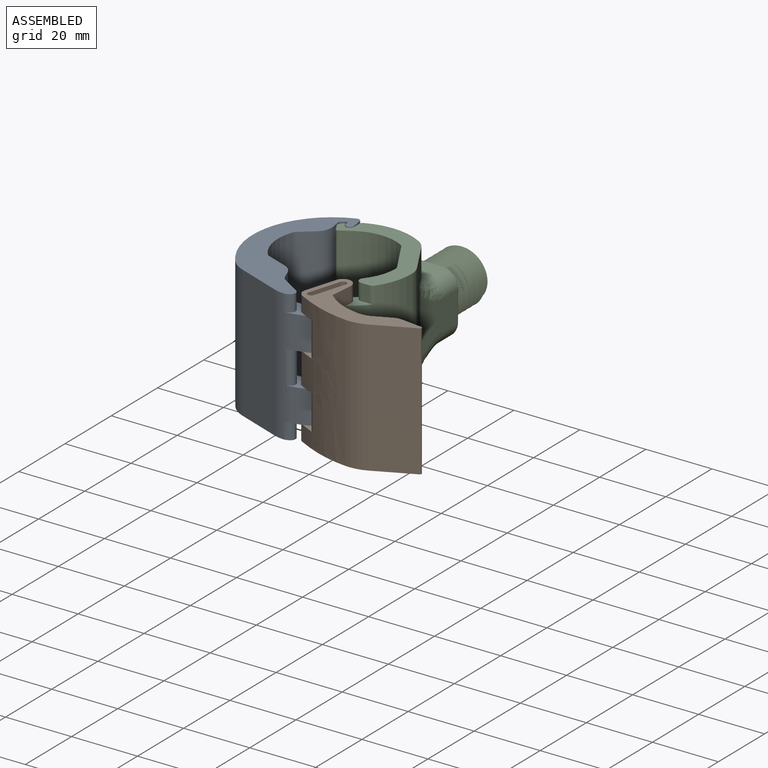
[diagram: assembled view]
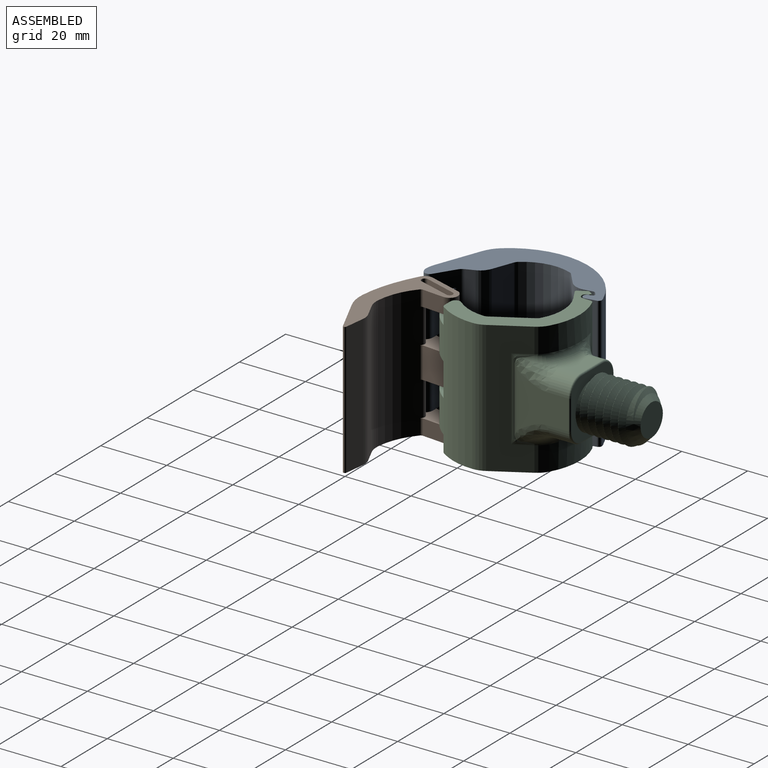
[diagram: assembled view, second angle]
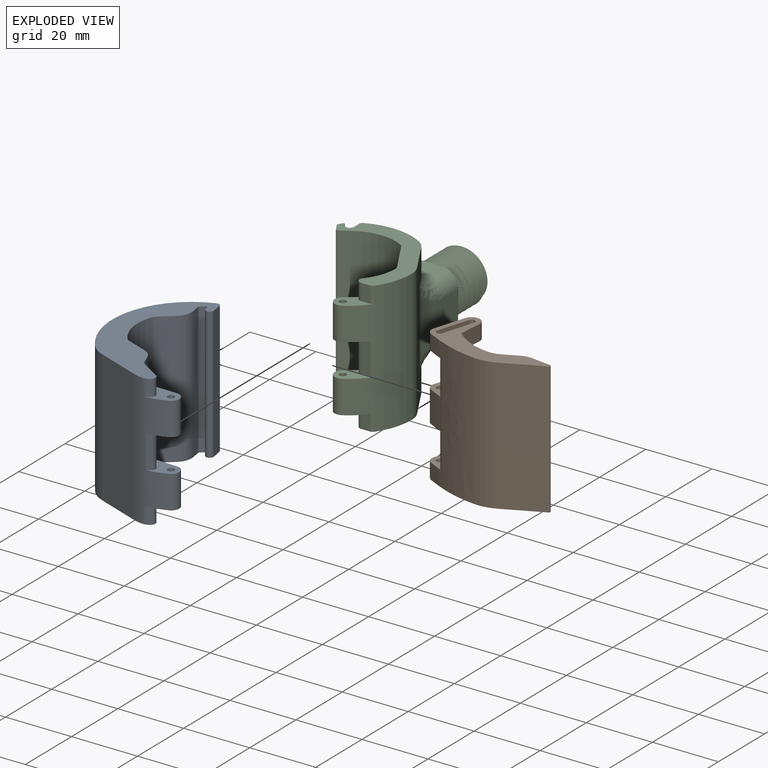
[diagram: exploded view]
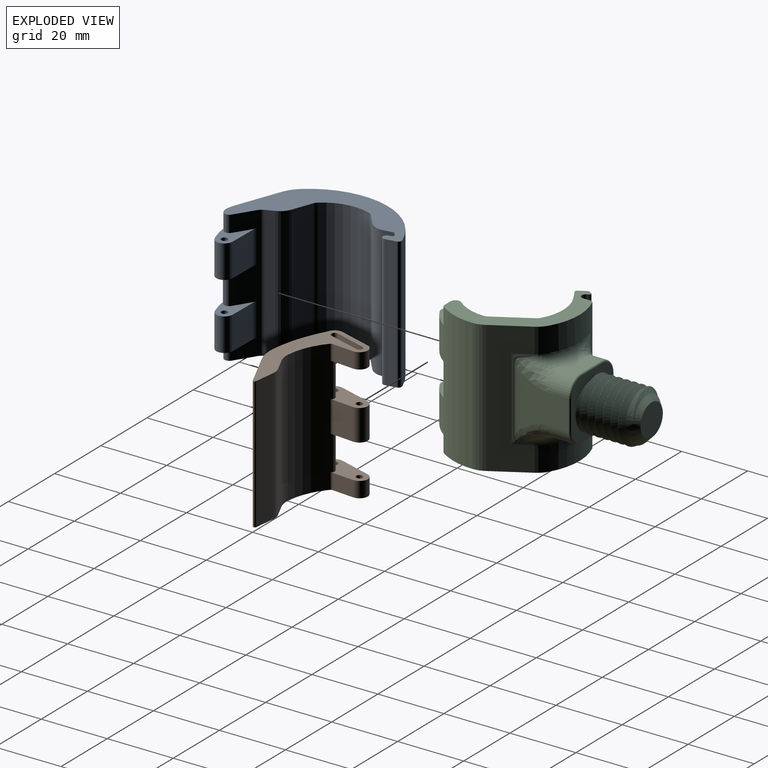
[diagram: exploded view, second angle]
ASSEMBLY  parts=3 mates=2
PART A: 46 faces, bbox 40.9x40.7x40 mm
  f0: plane 10x8mm, normal (-0.34,0.94,0), area 85mm2, adj f2,f4,f31,f33
  f1: plane 10x8mm, normal (-0.34,0.94,0), area 85mm2, adj f2,f14,f32,f35
  f2: cylinder r=2.76mm len=40mm, axis (0,0,1), area 100mm2, adj f0,f1,f5,f6,f15,f31,f32,f33
  f3: cylinder r=24.03mm len=10mm, axis (0,0,1), area 48.6mm2, adj f14,f30,f32,f35
  f4: cylinder r=2.5mm len=10mm, axis (0,0,1), area 68.8mm2, adj f0,f13,f31,f33
  f5: plane 40.65x35.95mm, normal (0,0,-1), area 424.6mm2, adj f2,f7,f8,f9,f10,f11,f12,f15
  f6: plane 40.65x35.95mm, normal (0,0,1), area 424.6mm2, adj f2,f7,f8,f9,f10,f11,f12,f15
  f7: plane 40x0.67mm, normal (-0.87,-0.5,0), area 31.2mm2, adj f5,f6,f8,f25
  f8: cylinder r=1.15mm len=40mm, axis (0,0,1), area 144.5mm2, adj f5,f6,f7,f9
  f9: plane 40x2.8mm, normal (0.87,0.5,0), area 129.1mm2, adj f5,f6,f8,f28
  f10: cylinder r=9.4mm len=40mm, axis (0,0,1), area 23.3mm2, adj f5,f6,f11,f28
  f11: cylinder r=24.03mm len=40mm, axis (0,0,1), area 1814.5mm2, adj f5,f6,f10,f29
  f12: plane 40x14.09mm, normal (0,-1,0), area 563.6mm2, adj f5,f6,f29,f30
  f13: cylinder r=24.03mm len=10mm, axis (0,0,1), area 48.6mm2, adj f4,f30,f31,f33
  f14: cylinder r=2.5mm len=10mm, axis (0,0,1), area 68.8mm2, adj f1,f3,f32,f35
  f15: plane 40x2.09mm, normal (0.74,0.67,0), area 112.7mm2, adj f2,f5,f6,f26
  f16: plane 40x6.72mm, normal (0,1,0), area 268.8mm2, adj f5,f6,f17,f26
  f17: cylinder r=2.1mm len=40mm, axis (0,0,1), area 44mm2, adj f5,f6,f16,f18
  f18: cylinder r=14.16mm len=40mm, axis (0,0,1), area 592.6mm2, adj f5,f6,f17,f19
  f19: cylinder r=2.1mm len=40mm, axis (0,0,1), area 44mm2, adj f5,f6,f18,f20
  f20: plane 40x4.4mm, normal (0.87,-0.5,0), area 203.3mm2, adj f5,f6,f19,f27
  f21: plane 40x2.3mm, normal (0.87,0.5,0), area 106.2mm2, adj f5,f6,f22,f27
  f22: cylinder r=0.6mm len=40mm, axis (0,0,1), area 25.1mm2, adj f5,f6,f21,f23
  f23: plane 40x0.7mm, normal (0.87,-0.5,0), area 32.3mm2, adj f5,f6,f22,f24
  f24: cylinder r=7.2mm len=40mm, axis (0,0,1), area 14.9mm2, adj f5,f6,f23,f25
  f25: cylinder r=0.6mm len=40mm, axis (0,0,1), area 49mm2, adj f5,f6,f7,f24
  f26: cylinder r=5mm len=40mm, axis (0,0,1), area 167.1mm2, adj f5,f6,f15,f16
  f27: cylinder r=5mm len=40mm, axis (0,0,1), area 209.4mm2, adj f5,f6,f20,f21
  f28: cylinder r=1mm len=40mm, axis (0,0,1), area 68.1mm2, adj f5,f6,f9,f10
  f29: cylinder r=10mm len=40mm, axis (0,0,1), area 210.4mm2, adj f5,f6,f11,f12
  f30: cylinder r=10mm len=40mm, axis (0,0,1), area 175.5mm2, adj f3,f5,f6,f12,f13,f31,f32,f33
  f31: plane 12.85x8.11mm, normal (0,0,-1), area 37.7mm2, adj f0,f2,f4,f13,f30,f36,f38,f42
  f32: plane 12.85x7.75mm, normal (0,0,-1), area 37.3mm2, adj f1,f2,f3,f14,f30,f34,f37,f41
  f33: plane 12.85x7.75mm, normal (0,0,1), area 37.3mm2, adj f0,f2,f4,f13,f30,f36,f37,f41
  f34: cylinder r=1mm len=10mm, axis (0,0,1), area 62.8mm2, adj f32,f35
  f35: plane 12.85x8.11mm, normal (0,0,1), area 37.7mm2, adj f1,f2,f3,f14,f30,f34,f39,f40
  f36: cylinder r=1mm len=10mm, axis (0,0,1), area 62.8mm2, adj f31,f33
  f37: cylinder r=3.1mm len=10mm, axis (0,0,1), area 12.8mm2, adj f30,f32,f33,f44
  f38: cylinder r=3.1mm len=5mm, axis (0,0,1), area 10.6mm2, adj f5,f30,f31,f43
  f39: cylinder r=3.1mm len=5mm, axis (0,0,1), area 10.6mm2, adj f6,f30,f35,f45
  f40: plane 6.76x5mm, normal (0.21,0.98,0), area 34.5mm2, adj f2,f6,f35,f45
  f41: plane 10x6.87mm, normal (0.21,0.98,0), area 70.2mm2, adj f2,f32,f33,f44
  f42: plane 6.76x5mm, normal (0.21,0.98,0), area 34.5mm2, adj f2,f5,f31,f43
  f43: cylinder r=1.5mm len=5mm, axis (0,0,1), area 14.6mm2, adj f5,f31,f38,f42
  f44: cylinder r=1.5mm len=10mm, axis (0,0,1), area 28.4mm2, adj f32,f33,f37,f41
  f45: cylinder r=1.5mm len=5mm, axis (0,0,1), area 14.6mm2, adj f6,f35,f39,f40
PART B: 50 faces, bbox 18.6x36.4x40 mm
  f0: plane 36.4x18.62mm, normal (0,0,-1), area 212.3mm2, adj f1,f4,f5,f8,f9,f11,f14,f15
  f1: plane 9.79x4.74mm, normal (-0.21,-0.98,0), area 47.4mm2, adj f0,f5,f14,f29
  f2: plane 9.79x4.74mm, normal (-0.21,-0.98,0), area 47.4mm2, adj f7,f17,f23,f26
  f3: plane 9.79x9.48mm, normal (-0.21,-0.98,0), area 94.7mm2, adj f6,f13,f27,f28
  f4: cylinder r=19.42mm len=40mm, axis (0,0,1), area 503.6mm2, adj f0,f21,f23,f26,f27,f28,f29,f38
  f5: cylinder r=2.5mm len=4.74mm, axis (0,0,1), area 16.4mm2, adj f0,f1,f8,f29
  f6: cylinder r=2.5mm len=9.47mm, axis (0,0,1), area 32.9mm2, adj f3,f8,f27,f28
  f7: cylinder r=2.5mm len=4.74mm, axis (0,0,1), area 16.4mm2, adj f2,f8,f23,f26
  f8: extruded ~40x17.43mm, area 605.4mm2, adj f0,f5,f6,f7,f18,f23,f26,f27
  f9: cylinder r=1mm len=4.74mm, axis (0,0,1), area 25.1mm2, adj f0,f29,f43,f44,f45
  f10: cylinder r=1mm len=4.74mm, axis (0,0,1), area 25.1mm2, adj f23,f26,f40,f41,f42
  f11: plane 6.5x4.74mm, normal (0,1,0), area 30.8mm2, adj f0,f14,f29,f49
  f12: plane 9.48x6.5mm, normal (0,1,0), area 61.6mm2, adj f13,f27,f28,f48
  f13: cylinder r=2.5mm len=9.47mm, axis (0,0,1), area 69.5mm2, adj f3,f12,f27,f28
  f14: cylinder r=2.5mm len=4.95mm, axis (0,0,1), area 34.7mm2, adj f0,f1,f11,f29
  f15: cylinder r=1mm len=4.74mm, axis (0,0,1), area 25.1mm2, adj f0,f29,f43,f44,f45
  f16: plane 6.5x4.74mm, normal (0,1,0), area 30.8mm2, adj f17,f23,f26,f47
  f17: cylinder r=2.5mm len=4.95mm, axis (0,0,1), area 34.7mm2, adj f2,f16,f23,f26
  f18: cylinder r=12.36mm len=40mm, axis (0,0,1), area 259.1mm2, adj f0,f8,f19,f23
  f19: plane 40x10.99mm, normal (0.87,0.5,0), area 507.6mm2, adj f0,f18,f23,f25
  f20: plane 40x4.33mm, normal (-0.87,-0.5,0), area 199.9mm2, adj f0,f21,f23,f46
  f21: cylinder r=7.36mm len=40mm, axis (0,0,1), area 154.3mm2, adj f0,f4,f20,f23
  f22: cylinder r=1mm len=4.74mm, axis (0,0,1), area 25.1mm2, adj f23,f26,f40,f41,f42
  f23: plane 36.4x18.62mm, normal (0,0,1), area 212.3mm2, adj f2,f4,f7,f8,f10,f16,f17,f18
  f24: plane 40x6.25mm, normal (-1,0.03,0), area 250.3mm2, adj f0,f23,f25,f46
  f25: cylinder r=0.5mm len=40mm, axis (0,0,1), area 51.7mm2, adj f0,f19,f23,f24
  f26: plane 16.57x7.47mm, normal (0,0,-1), area 70.9mm2, adj f2,f4,f7,f8,f10,f16,f17,f22
  f27: plane 16.57x7.47mm, normal (0,0,1), area 70.9mm2, adj f3,f4,f6,f8,f12,f13,f30,f31
  f28: plane 16.57x7.47mm, normal (0,0,-1), area 70.9mm2, adj f3,f4,f6,f8,f12,f13,f30,f33
  f29: plane 16.57x7.47mm, normal (0,0,1), area 70.9mm2, adj f1,f4,f5,f8,f9,f11,f14,f15
  f30: cylinder r=1mm len=9.47mm, axis (0,0,1), area 59.5mm2, adj f27,f28
  f31: cylinder r=2.76mm len=10.53mm, axis (0,0,1), area 20.7mm2, adj f26,f27,f32,f37
  f32: plane 10.53x0.34mm, normal (0.34,-0.94,0), area 3.8mm2, adj f26,f27,f31,f38
  f33: cylinder r=1mm len=9.47mm, axis (0,0,1), area 59.5mm2, adj f27,f28
  f34: plane 10.53x0.34mm, normal (0.34,-0.94,0), area 3.8mm2, adj f28,f29,f35,f39
  f35: cylinder r=2.76mm len=10.53mm, axis (0,0,1), area 20.7mm2, adj f28,f29,f34,f36
  f36: cylinder r=2.5mm len=10.53mm, axis (0,0,1), area 42.7mm2, adj f8,f28,f29,f35
  f37: cylinder r=2.5mm len=10.53mm, axis (0,0,1), area 42.7mm2, adj f8,f26,f27,f31
  f38: cylinder r=1.34mm len=10.53mm, axis (0,0,1), area 36.4mm2, adj f4,f26,f27,f32
  f39: cylinder r=1.34mm len=10.53mm, axis (0,0,1), area 36.4mm2, adj f4,f28,f29,f34
  f40: plane 10.2x4.02mm, normal (0,0,1), area 16.9mm2, adj f10,f22,f41,f42
  f41: plane 9.79x2.06mm, normal (0.21,0.98,0), area 15mm2, adj f10,f22,f23,f40
  f42: plane 9.79x2.06mm, normal (-0.21,-0.98,0), area 15mm2, adj f10,f22,f23,f40
  f43: plane 10.2x4.02mm, normal (0,0,-1), area 16.9mm2, adj f9,f15,f44,f45
  f44: plane 9.79x2.06mm, normal (0.21,0.98,0), area 15mm2, adj f0,f9,f15,f43
  f45: plane 9.79x2.06mm, normal (-0.21,-0.98,0), area 15mm2, adj f0,f9,f15,f43
  f46: cylinder r=5mm len=40mm, axis (0,0,-1), area 111.7mm2, adj f0,f20,f23,f24
  f47: cylinder r=1mm len=4.74mm, axis (0,0,1), area 4.4mm2, adj f4,f16,f23,f26
  f48: cylinder r=1mm len=9.47mm, axis (0,0,1), area 8.9mm2, adj f4,f12,f27,f28
  f49: cylinder r=1mm len=4.74mm, axis (0,0,1), area 4.4mm2, adj f0,f4,f11,f29
PART C: 84 faces, bbox 33.4x63.1x41.6 mm
  f0: cylinder r=7.1mm len=7.54mm, axis (0,0,-1), area 28mm2, adj f1,f9,f11,f50
  f1: plane 31.8x30.82mm, normal (0,0,-1), area 244.9mm2, adj f0,f2,f3,f6,f7,f8,f9,f11
  f2: cylinder r=19.16mm len=40mm, axis (0,0,-1), area 635.7mm2, adj f1,f4,f5,f8,f21,f22,f23,f25
  f3: cylinder r=14.16mm len=40mm, axis (0,0,-1), area 496.2mm2, adj f1,f4,f5,f7,f21,f22,f23,f25
  f4: cylinder r=2.5mm len=10mm, axis (0,0,-1), area 78.6mm2, adj f2,f3,f22,f26
  f5: cylinder r=2.5mm len=10mm, axis (0,0,-1), area 78.6mm2, adj f2,f3,f23,f25
  f6: plane 40x10.45mm, normal (-0.87,-0.5,0), area 482.7mm2, adj f1,f7,f20,f21
  f7: cylinder r=2.1mm len=40mm, axis (0,0,-1), area 44mm2, adj f1,f3,f6,f21
  f8: cylinder r=7.1mm len=40mm, axis (0,0,-1), area 148.8mm2, adj f1,f2,f9,f21
  f9: plane 40x10.45mm, normal (0.87,0.5,0), area 336.1mm2, adj f0,f1,f8,f10,f21,f46,f47,f48
  f10: cylinder r=7.1mm len=7.54mm, axis (0,0,-1), area 28mm2, adj f9,f11,f21,f49
  f11: cylinder r=19.16mm len=40mm, axis (0,0,-1), area 313mm2, adj f0,f1,f10,f21,f31,f51,f52,f53
  f12: plane 40x2.34mm, normal (-1,0,0), area 93.7mm2, adj f1,f13,f21,f31
  f13: cylinder r=1.25mm len=40mm, axis (0,0,-1), area 130.9mm2, adj f1,f12,f14,f21
  f14: plane 40x0.67mm, normal (0.87,0.5,0), area 31.2mm2, adj f1,f13,f21,f28
  f15: cylinder r=7.1mm len=40mm, axis (0,0,-1), area 14.7mm2, adj f1,f16,f21,f28
  f16: plane 40x0.7mm, normal (-0.87,0.5,0), area 32.3mm2, adj f1,f15,f21,f29
  f17: plane 40x2.35mm, normal (-0.87,-0.5,0), area 108.5mm2, adj f1,f21,f29,f30
  f18: plane 40x3.47mm, normal (0.5,-0.87,0), area 160mm2, adj f1,f19,f21,f30
  f19: cylinder r=14.16mm len=40mm, axis (0,0,-1), area 592.6mm2, adj f1,f18,f20,f21
  f20: cylinder r=2.1mm len=40mm, axis (0,0,-1), area 44mm2, adj f1,f6,f19,f21
  f21: plane 31.8x30.82mm, normal (0,0,1), area 244.9mm2, adj f2,f3,f6,f7,f8,f9,f10,f11
  f22: plane 9.84x7.74mm, normal (0,0,-1), area 31.9mm2, adj f2,f3,f4,f24,f33,f37,f38
  f23: plane 9.84x7.74mm, normal (0,0,1), area 31.9mm2, adj f2,f3,f5,f27,f33,f37,f38
  f24: cylinder r=1mm len=10mm, axis (0,0,-1), area 62.8mm2, adj f22,f26
  f25: plane 9.84x7.74mm, normal (0,0,-1), area 31.9mm2, adj f2,f3,f5,f27,f34,f35,f36
  f26: plane 9.84x7.74mm, normal (0,0,1), area 31.9mm2, adj f2,f3,f4,f24,f32,f39,f40
  f27: cylinder r=1mm len=10mm, axis (0,0,-1), area 62.8mm2, adj f23,f25
  f28: cylinder r=0.5mm len=40mm, axis (0,0,-1), area 40.9mm2, adj f1,f14,f15,f21
  f29: cylinder r=0.5mm len=40mm, axis (0,0,-1), area 20.9mm2, adj f1,f16,f17,f21
  f30: cylinder r=0.5mm len=40mm, axis (0,0,1), area 31.4mm2, adj f1,f17,f18,f21
  f31: cylinder r=1mm len=40mm, axis (0,0,-1), area 46mm2, adj f1,f11,f12,f21
  f32: plane 5x2.53mm, normal (0,-1,0), area 12.6mm2, adj f21,f26,f39,f40
  f33: plane 10x2.53mm, normal (0,-1,0), area 25.3mm2, adj f22,f23,f37,f38
  f34: plane 5x2.53mm, normal (0,-1,0), area 12.6mm2, adj f1,f25,f35,f36
  f35: cylinder r=1.5mm len=5mm, axis (0,0,-1), area 7.2mm2, adj f1,f2,f25,f34
  f36: cylinder r=1.5mm len=5mm, axis (0,0,-1), area 17.1mm2, adj f1,f3,f25,f34
  f37: cylinder r=1.5mm len=10mm, axis (0,0,-1), area 14.4mm2, adj f2,f22,f23,f33
  f38: cylinder r=1.5mm len=10mm, axis (0,0,-1), area 34.2mm2, adj f3,f22,f23,f33
  f39: cylinder r=1.5mm len=5mm, axis (0,0,-1), area 7.2mm2, adj f2,f21,f26,f32
  f40: cylinder r=1.5mm len=5mm, axis (0,0,-1), area 17.1mm2, adj f3,f21,f26,f32
  f41: plane 19.65x19.65mm, normal (0,1,0), area 153.5mm2, adj f70,f74,f75,f76,f77,f78,f79,f80
  f42: plane 9.24x5.23mm, normal (-1,0,0), area 47.4mm2, adj f53,f54,f55,f62,f63,f79
  f43: plane 17.07x15.8mm, normal (1,0,0), area 169mm2, adj f46,f57,f58,f59,f60,f65,f66,f67
  f44: plane 9.05x6.25mm, normal (0,0,1), area 43.3mm2, adj f51,f62,f65,f76
  f45: plane 9.05x6.25mm, normal (0,0,-1), area 43.3mm2, adj f52,f54,f57,f83
  f46: cylinder r=2.94mm len=24.93mm, axis (0,0,-1), area 32.3mm2, adj f9,f43,f61,f69
  f47: cylinder r=2.94mm len=5.5mm, axis (-0.5,0.87,0), area 6.7mm2, adj f9,f49,f68,f69
  f48: cylinder r=2.94mm len=5.5mm, axis (0.5,-0.87,0), area 6.7mm2, adj f9,f50,f60,f61
  f49: torus R=10.04mm, axis (0,0,1), area 11.6mm2, adj f10,f47,f51,f67
  f50: torus R=10.04mm, axis (0,0,1), area 11.6mm2, adj f0,f48,f52,f59
  f51: torus R=22.1mm, axis (0,0,1), area 55.2mm2, adj f11,f44,f49,f63,f64,f66
  f52: torus R=22.1mm, axis (0,0,1), area 55.2mm2, adj f11,f45,f50,f55,f56,f58
  f53: cylinder r=2.94mm len=24.93mm, axis (0,0,-1), area 55mm2, adj f11,f42,f56,f64
  f54: cylinder r=5mm len=5mm, axis (0,-1,0), area 31.5mm2, adj f42,f45,f55,f81
  f55: bspline ~5.26x5.07mm, area 5.8mm2, adj f42,f52,f54,f56
  f56: bspline ~7.95x7.01mm, area 22mm2, adj f52,f53,f55
  f57: cylinder r=5mm len=6.25mm, axis (0,1,0), area 49.1mm2, adj f43,f45,f58,f82
  f58: bspline ~5.3x5.24mm, area 15.8mm2, adj f43,f52,f57,f59
  f59: bspline ~6.46x5.7mm, area 24.4mm2, adj f43,f50,f58,f60
  f60: bspline ~4.03x3.98mm, area 9mm2, adj f43,f48,f59,f61
  f61: bspline ~4.63x4.28mm, area 4.5mm2, adj f46,f48,f60
  f62: cylinder r=5mm len=5mm, axis (0,1,0), area 31.5mm2, adj f42,f44,f63,f77
  f63: bspline ~5.26x5.07mm, area 5.8mm2, adj f42,f51,f62,f64
  f64: bspline ~7.95x7.01mm, area 22mm2, adj f51,f53,f63
  f65: cylinder r=5mm len=6.25mm, axis (0,-1,0), area 49.1mm2, adj f43,f44,f66,f78
  f66: bspline ~5.23x5.23mm, area 15.8mm2, adj f43,f51,f65,f67
  f67: bspline ~7.35x6mm, area 24.4mm2, adj f43,f49,f66,f68
  f68: bspline ~4.03x3.98mm, area 9mm2, adj f43,f47,f67,f69
  f69: bspline ~4.63x4.28mm, area 4.5mm2, adj f46,f47,f68
  f70: cylinder r=7.94mm len=15.88mm, axis (0,-1,0), area 22.9mm2, adj f41,f72,f74,f75
  f71: plane 9.68x9.68mm, normal (0,1,0), area 73.5mm2, adj f73
  f72: cone r=4.84mm half-angle=45deg, axis (0,-1,0), area 15.1mm2, adj f70,f73,f74,f75
  f73: cone r=4.84mm half-angle=45deg, axis (0,-1,0), area 100.1mm2, adj f71,f72,f74
  f74: bspline ~19.23x18.33mm, area 670.7mm2, adj f41,f70,f72,f73,f75
  f75: bspline ~18.33x18.07mm, area 668.4mm2, adj f41,f70,f72,f74
  f76: cylinder r=0.5mm len=9.05mm, axis (1,0,0), area 7.1mm2, adj f41,f44,f77,f78
  f77: torus R=4.5mm, axis (0,1,0), area 5.9mm2, adj f41,f62,f76,f79
  f78: torus R=4.5mm, axis (0,1,0), area 5.9mm2, adj f41,f65,f76,f80
  f79: cylinder r=0.5mm len=9.05mm, axis (0,0,1), area 7.1mm2, adj f41,f42,f77,f81
  f80: cylinder r=0.5mm len=9.05mm, axis (0,0,-1), area 7.1mm2, adj f41,f43,f78,f82
  f81: torus R=4.5mm, axis (0,1,0), area 5.9mm2, adj f41,f54,f79,f83
  f82: torus R=4.5mm, axis (0,1,0), area 5.9mm2, adj f41,f57,f80,f83
  f83: cylinder r=0.5mm len=9.05mm, axis (-1,0,0), area 7.1mm2, adj f41,f45,f81,f82
PLACE A rot(axis=(0,0,-1),20.5deg) t=(-5.76,-2.2,0)mm
PLACE B rot(axis=(0,0,-1),95deg) t=(23.43,-7.38,0)mm
PLACE C at identity fixed
MATE cylindrical C.f4 <-> B.f13  axis (0,0,1) through (8.33,-14.42,15)mm
MATE cylindrical A.f4 <-> B.f5  axis (0,0,1) through (5.43,-23.99,15)mm
